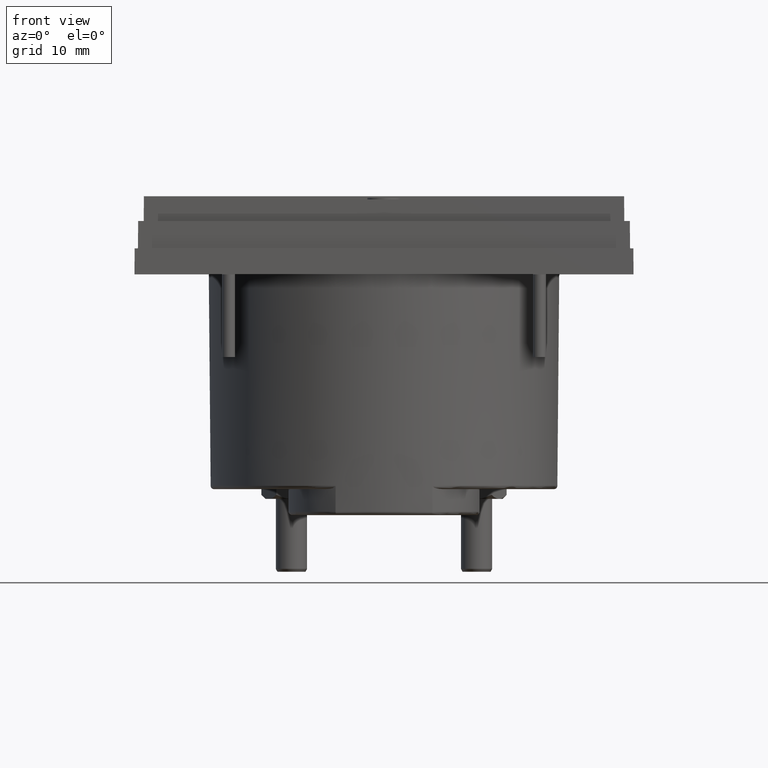
[diagram: clean part render]
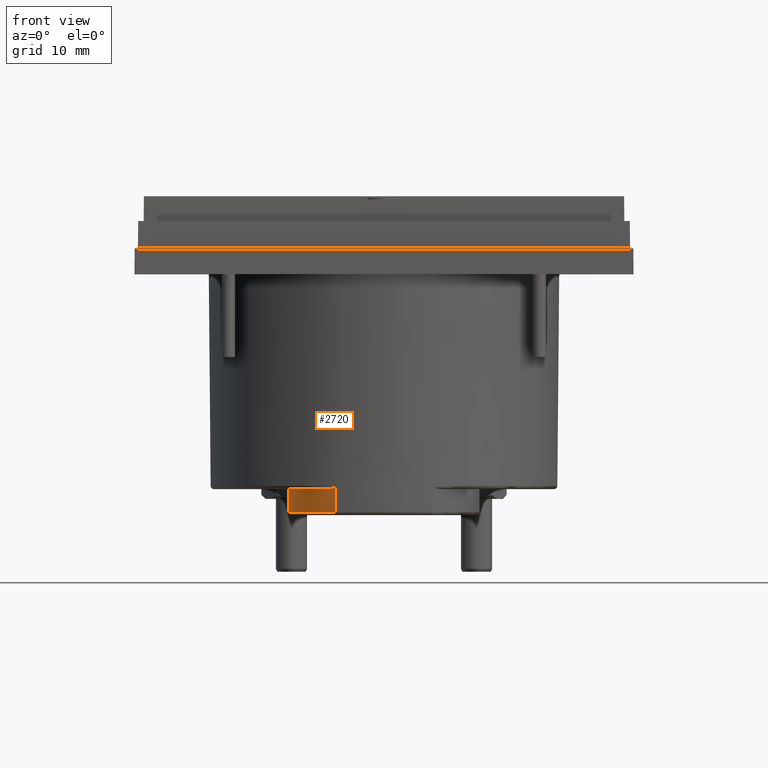
[diagram: same view with one face highlighted and labeled with its STEP entity id]
A machine part, front view. The second image highlights one B-rep face of the part: STEP entity #2720.
In plain terms, the highlighted conical surface has half-angle 0.5 deg.
Its self-contained STEP definition (entity closure, byte-faithful):
#153 = CARTESIAN_POINT ( 'NONE',  ( -0.2963883647827497136, -0.1892645800545077195, -1.558640516070740833 ) ) ;
#176 = ORIENTED_EDGE ( 'NONE', *, *, #3810, .F. ) ;
#433 = DIRECTION ( 'NONE',  ( 0.003475595822222928358, 0.008083078759331716046, -0.9999612912865432079 ) ) ;
#520 = VERTEX_POINT ( 'NONE', #1372 ) ;
#604 = CARTESIAN_POINT ( 'NONE',  ( -0.3429084035062144875, -0.1584104749239668430, -1.572440944881890568 ) ) ;
#937 = CARTESIAN_POINT ( 'NONE',  ( 1.110009266161688993E-15, 0.3079628242764882451, -1.710408002667302307 ) ) ;
#938 = DIRECTION ( 'NONE',  ( -0.000000000000000000, -0.000000000000000000, -1.000000000000000000 ) ) ;
#1081 = VERTEX_POINT ( 'NONE', #2109 ) ;
#1090 = CARTESIAN_POINT ( 'NONE',  ( -0.3330405270648423288, -0.1655127760152643457, -1.571498633586310811 ) ) ;
#1112 = CARTESIAN_POINT ( 'NONE',  ( 1.126887297386508504E-15, 0.3079628242764882451, -1.572440944881893232 ) ) ;
#1125 = CARTESIAN_POINT ( 'NONE',  ( -0.3056257446321601901, -0.1835901728733224103, -1.564249244715220977 ) ) ;
#1163 = LINE ( 'NONE', #2490, #2542 ) ;
#1372 = CARTESIAN_POINT ( 'NONE',  ( -0.5787401574803138216, 0.3079628242764883006, -1.572440944881893232 ) ) ;
#1397 = AXIS2_PLACEMENT_3D ( 'NONE', #5452, #2665, #4632 ) ;
#1521 = CARTESIAN_POINT ( 'NONE',  ( -0.3180455918158923700, -0.1756326286454189811, -1.568379305681946168 ) ) ;
#1576 = CARTESIAN_POINT ( 'NONE',  ( -0.2985299348344104819, -0.1879639558665446020, -1.560388599297916290 ) ) ;
#1592 = DIRECTION ( 'NONE',  ( -0.008726535488402641788, 1.068692375351808090E-18, 0.9999619230642582401 ) ) ;
#1662 = EDGE_CURVE ( 'NONE', #4892, #1081, #4549, .T. ) ;
#1709 = AXIS2_PLACEMENT_3D ( 'NONE', #1112, #938, #3855 ) ;
#1712 = FACE_OUTER_BOUND ( 'NONE', #3957, .T. ) ;
#1786 = DIRECTION ( 'NONE',  ( 0.000000000000000000, 0.000000000000000000, 1.000000000000000000 ) ) ;
#1832 = B_SPLINE_CURVE_WITH_KNOTS ( 'NONE', 3,
 ( #4331, #604, #1090, #1521, #3867, #1125, #1970, #2445, #1576, #153, #5688, #2003 ),
 .UNSPECIFIED., .F., .F.,
 ( 4, 2, 2, 2, 2, 4 ),
 ( 0.000000000000000000, 0.0009291443928877144614, 0.001393716589331570879, 0.001626002687553499033, 0.001742145736664464303, 0.001858288785775429356 ),
 .UNSPECIFIED. ) ;
#1928 = CARTESIAN_POINT ( 'NONE',  ( -0.2945860934698530387, -0.1903557534465491752, -1.556385643741205138 ) ) ;
#1970 = CARTESIAN_POINT ( 'NONE',  ( -0.3031896479503095598, -0.1851064649172534660, -1.563179489205512862 ) ) ;
#2003 = CARTESIAN_POINT ( 'NONE',  ( -0.2945860934698530387, -0.1903557534465491752, -1.556385643741205138 ) ) ;
#2109 = CARTESIAN_POINT ( 'NONE',  ( -0.2940507875102191249, -0.1891107342249911116, -1.710408002659766113 ) ) ;
#2158 = VECTOR ( 'NONE', #433, 39.37007874015748143 ) ;
#2318 = DIRECTION ( 'NONE',  ( -1.000000000000000000, 0.000000000000000000, -2.365088362146979064E-15 ) ) ;
#2445 = CARTESIAN_POINT ( 'NONE',  ( -0.2996757454351661187, -0.1872650614704992056, -1.561141076144138884 ) ) ;
#2490 = CARTESIAN_POINT ( 'NONE',  ( -0.5788883346539713814, 0.3079628242764883006, -1.555461522553097220 ) ) ;
#2542 = VECTOR ( 'NONE', #1592, 39.37007874015748854 ) ;
#2554 = CIRCLE ( 'NONE', #5936, 0.5775361372089174994 ) ;
#2604 = ORIENTED_EDGE ( 'NONE', *, *, #1662, .F. ) ;
#2665 = DIRECTION ( 'NONE',  ( 0.000000000000000000, 0.000000000000000000, 1.000000000000000000 ) ) ;
#2720 = ADVANCED_FACE ( 'NONE', ( #1712 ), #3225, .T. ) ;
#3167 = ORIENTED_EDGE ( 'NONE', *, *, #4111, .F. ) ;
#3225 = CONICAL_SURFACE ( 'NONE', #1397, 0.5788883346539724917, 0.008726646249999976679 ) ;
#3524 = CARTESIAN_POINT ( 'NONE',  ( -0.5775361372089165002, 0.3079628242764883006, -1.710408002667302307 ) ) ;
#3810 = EDGE_CURVE ( 'NONE', #5581, #520, #1163, .T. ) ;
#3855 = DIRECTION ( 'NONE',  ( 1.000000000000000000, 0.000000000000000000, 0.000000000000000000 ) ) ;
#3867 = CARTESIAN_POINT ( 'NONE',  ( -0.3130274916262076879, -0.1789071655371692049, -1.567062414169336781 ) ) ;
#3899 = ORIENTED_EDGE ( 'NONE', *, *, #5426, .T. ) ;
#3957 = EDGE_LOOP ( 'NONE', ( #176, #5174, #2604, #3167, #3899 ) ) ;
#4111 = EDGE_CURVE ( 'NONE', #4674, #4892, #1832, .T. ) ;
#4322 = EDGE_CURVE ( 'NONE', #5581, #1081, #2554, .T. ) ;
#4331 = CARTESIAN_POINT ( 'NONE',  ( -0.3526218288023952319, -0.1509467700145803726, -1.572440944881890568 ) ) ;
#4351 = CARTESIAN_POINT ( 'NONE',  ( -0.3526218288023952319, -0.1509467700145803726, -1.572440944881890568 ) ) ;
#4549 = LINE ( 'NONE', #5029, #2158 ) ;
#4632 = DIRECTION ( 'NONE',  ( 1.000000000000000000, 0.000000000000000000, 0.000000000000000000 ) ) ;
#4674 = VERTEX_POINT ( 'NONE', #4351 ) ;
#4892 = VERTEX_POINT ( 'NONE', #1928 ) ;
#4982 = CIRCLE ( 'NONE', #1709, 0.5787401574803150428 ) ;
#5029 = CARTESIAN_POINT ( 'NONE',  ( -0.2943261013148880667, -0.1897510389381135698, -1.631195404287784534 ) ) ;
#5174 = ORIENTED_EDGE ( 'NONE', *, *, #4322, .T. ) ;
#5426 = EDGE_CURVE ( 'NONE', #4674, #520, #4982, .T. ) ;
#5452 = CARTESIAN_POINT ( 'NONE',  ( 1.126887297386508504E-15, 0.3079628242764882451, -1.555461522553097220 ) ) ;
#5581 = VERTEX_POINT ( 'NONE', #3524 ) ;
#5688 = CARTESIAN_POINT ( 'NONE',  ( -0.2953638032142358316, -0.1898833042136651716, -1.557637779363227670 ) ) ;
#5936 = AXIS2_PLACEMENT_3D ( 'NONE', #937, #1786, #2318 ) ;